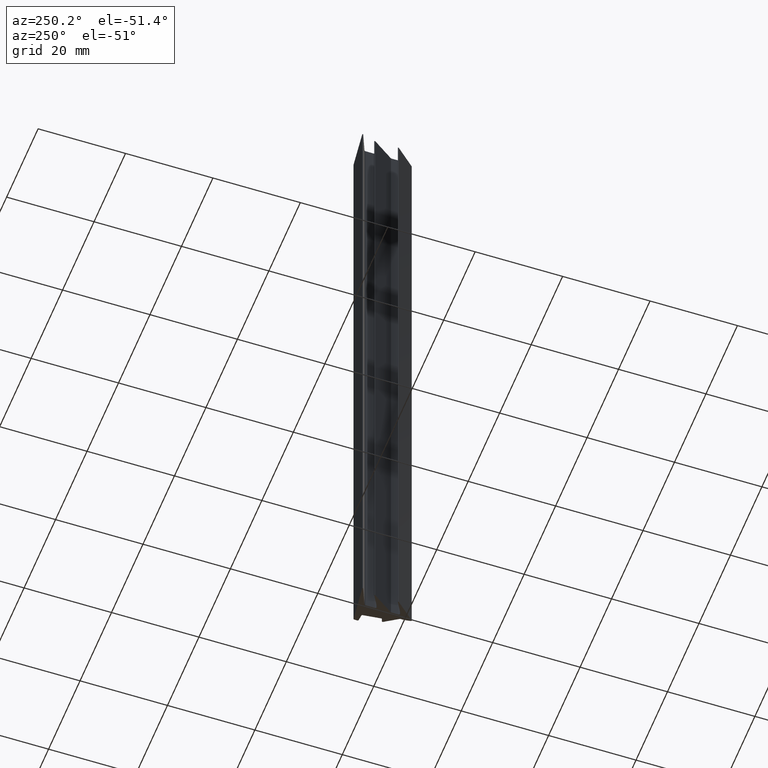
[diagram: clean part render]
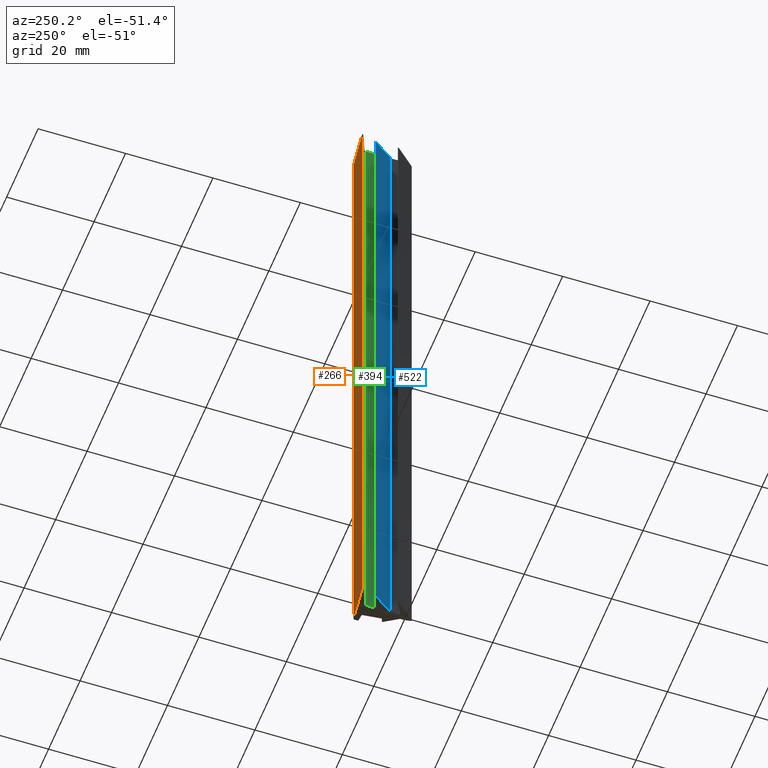
[diagram: same view with three faces highlighted in distinct colors, each labeled with its STEP entity id]
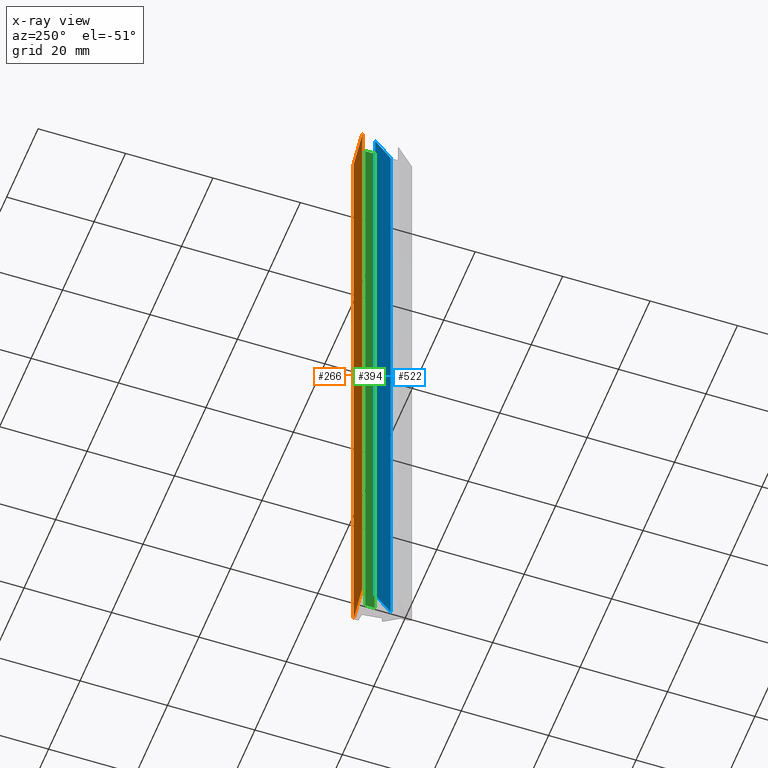
[diagram: x-ray of the same camera — body ghosted, the three highlighted faces saturated]
A machine part, auxiliary view with three faces highlighted in distinct colors.
The next image is the same camera in x-ray (body ghosted, the three faces saturated) — at least one of them is partly hidden behind the body in this view.
Their STEP definitions:

[orange] entity #266 — the highlighted planar face has unit normal (0.1253, 0.9921, 0).
#208=CARTESIAN_POINT('',(5.703349927026920,9.761455965798632,0.0));
#209=VERTEX_POINT('',#208);
#217=CARTESIAN_POINT('',(5.703349927026920,9.761455965798632,156.662099546738520));
#218=VERTEX_POINT('',#217);
#219=CARTESIAN_POINT('',(5.703349927026920,9.761455965798632,0.0));
#220=DIRECTION('',(0.0,0.0,1.0));
#221=VECTOR('',#220,156.662099546738520);
#222=LINE('',#219,#221);
#223=EDGE_CURVE('',#209,#218,#222,.T.);
#236=CARTESIAN_POINT('',(6.125630443962109,9.708140382124839,-7.833104977336927));
#237=DIRECTION('',(0.125261887887571,0.992123711763226,0.0));
#238=DIRECTION('',(-0.992123711763226,0.125261887887571,0.0));
#239=AXIS2_PLACEMENT_3D('',#236,#237,#238);
#240=PLANE('',#239);
#241=CARTESIAN_POINT('',(-2.742260411687312,10.827767639279045,0.0));
#242=VERTEX_POINT('',#241);
#243=CARTESIAN_POINT('',(5.703349927026920,9.761455965798632,0.0));
#244=DIRECTION('',(-0.992123711763217,0.125261887887643,0.0));
#245=VECTOR('',#244,8.512658490647869);
#246=LINE('',#243,#245);
#247=EDGE_CURVE('',#209,#242,#246,.T.);
#248=ORIENTED_EDGE('',*,*,#247,.T.);
#249=CARTESIAN_POINT('',(-2.742260411687312,10.827767639279045,156.662099546738520));
#250=VERTEX_POINT('',#249);
#251=CARTESIAN_POINT('',(-2.742260411687312,10.827767639279045,0.0));
#252=DIRECTION('',(0.0,0.0,1.0));
#253=VECTOR('',#252,156.662099546738520);
#254=LINE('',#251,#253);
#255=EDGE_CURVE('',#242,#250,#254,.T.);
#256=ORIENTED_EDGE('',*,*,#255,.T.);
#257=CARTESIAN_POINT('',(5.703349927026920,9.761455965798632,156.662099546738520));
#258=DIRECTION('',(-0.992123711763217,0.125261887887643,0.0));
#259=VECTOR('',#258,8.512658490647869);
#260=LINE('',#257,#259);
#261=EDGE_CURVE('',#218,#250,#260,.T.);
#262=ORIENTED_EDGE('',*,*,#261,.F.);
#263=ORIENTED_EDGE('',*,*,#223,.F.);
#264=EDGE_LOOP('',(#248,#256,#262,#263));
#265=FACE_OUTER_BOUND('',#264,.T.);
#266=ADVANCED_FACE('',(#265),#240,.T.);

[blue] entity #522 — the highlighted planar face has unit normal (-0.8221, -0.5693, 0).
#464=CARTESIAN_POINT('',(-1.932615860579972,7.551765873482509,0.0));
#465=VERTEX_POINT('',#464);
#473=CARTESIAN_POINT('',(-1.932615860579972,7.551765873482509,156.662099546738520));
#474=VERTEX_POINT('',#473);
#475=CARTESIAN_POINT('',(-1.932615860579972,7.551765873482509,0.0));
#476=DIRECTION('',(0.0,0.0,1.0));
#477=VECTOR('',#476,156.662099546738520);
#478=LINE('',#475,#477);
#479=EDGE_CURVE('',#465,#474,#478,.T.);
#492=CARTESIAN_POINT('',(-2.094520351987740,7.785560691892897,-7.833104977336927));
#493=DIRECTION('',(-0.822115594193941,-0.569320603687538,0.0));
#494=DIRECTION('',(0.569320603687538,-0.822115594193941,0.0));
#495=AXIS2_PLACEMENT_3D('',#492,#493,#494);
#496=PLANE('',#495);
#497=CARTESIAN_POINT('',(1.305473967573562,2.875869505279297,0.0));
#498=VERTEX_POINT('',#497);
#499=CARTESIAN_POINT('',(-1.932615860579972,7.551765873482509,0.0));
#500=DIRECTION('',(0.569320603687481,-0.822115594193981,0.0));
#501=VECTOR('',#500,5.687638576893263);
#502=LINE('',#499,#501);
#503=EDGE_CURVE('',#465,#498,#502,.T.);
#504=ORIENTED_EDGE('',*,*,#503,.T.);
#505=CARTESIAN_POINT('',(1.305473967573562,2.875869505279297,156.662099546738520));
#506=VERTEX_POINT('',#505);
#507=CARTESIAN_POINT('',(1.305473967573562,2.875869505279297,0.0));
#508=DIRECTION('',(0.0,0.0,1.0));
#509=VECTOR('',#508,156.662099546738520);
#510=LINE('',#507,#509);
#511=EDGE_CURVE('',#498,#506,#510,.T.);
#512=ORIENTED_EDGE('',*,*,#511,.T.);
#513=CARTESIAN_POINT('',(-1.932615860579972,7.551765873482509,156.662099546738520));
#514=DIRECTION('',(0.569320603687481,-0.822115594193981,0.0));
#515=VECTOR('',#514,5.687638576893263);
#516=LINE('',#513,#515);
#517=EDGE_CURVE('',#474,#506,#516,.T.);
#518=ORIENTED_EDGE('',*,*,#517,.F.);
#519=ORIENTED_EDGE('',*,*,#479,.F.);
#520=EDGE_LOOP('',(#504,#512,#518,#519));
#521=FACE_OUTER_BOUND('',#520,.T.);
#522=ADVANCED_FACE('',(#521),#496,.T.);

[green] entity #394 — the highlighted planar face has unit normal (-1, 0, 0).
#336=CARTESIAN_POINT('',(1.378657768036192,8.590800791863330,0.0));
#337=VERTEX_POINT('',#336);
#345=CARTESIAN_POINT('',(1.378657768036192,8.590800791863330,156.662099546738520));
#346=VERTEX_POINT('',#345);
#347=CARTESIAN_POINT('',(1.378657768036192,8.590800791863330,0.0));
#348=DIRECTION('',(0.0,0.0,1.0));
#349=VECTOR('',#348,156.662099546738520);
#350=LINE('',#347,#349);
#351=EDGE_CURVE('',#337,#346,#350,.T.);
#364=CARTESIAN_POINT('',(1.378657768036192,8.696981201759627,-7.833104977336927));
#365=DIRECTION('',(-1.0,0.0,0.0));
#366=DIRECTION('',(0.0,-1.0,0.0));
#367=AXIS2_PLACEMENT_3D('',#364,#365,#366);
#368=PLANE('',#367);
#369=CARTESIAN_POINT('',(1.378657768036192,6.467192593946493,0.0));
#370=VERTEX_POINT('',#369);
#371=CARTESIAN_POINT('',(1.378657768036192,8.590800791863330,0.0));
#372=DIRECTION('',(0.0,-1.0,0.0));
#373=VECTOR('',#372,2.123608197916838);
#374=LINE('',#371,#373);
#375=EDGE_CURVE('',#337,#370,#374,.T.);
#376=ORIENTED_EDGE('',*,*,#375,.T.);
#377=CARTESIAN_POINT('',(1.378657768036192,6.467192593946493,156.662099546738520));
#378=VERTEX_POINT('',#377);
#379=CARTESIAN_POINT('',(1.378657768036192,6.467192593946493,0.0));
#380=DIRECTION('',(0.0,0.0,1.0));
#381=VECTOR('',#380,156.662099546738520);
#382=LINE('',#379,#381);
#383=EDGE_CURVE('',#370,#378,#382,.T.);
#384=ORIENTED_EDGE('',*,*,#383,.T.);
#385=CARTESIAN_POINT('',(1.378657768036192,8.590800791863330,156.662099546738520));
#386=DIRECTION('',(0.0,-1.0,0.0));
#387=VECTOR('',#386,2.123608197916838);
#388=LINE('',#385,#387);
#389=EDGE_CURVE('',#346,#378,#388,.T.);
#390=ORIENTED_EDGE('',*,*,#389,.F.);
#391=ORIENTED_EDGE('',*,*,#351,.F.);
#392=EDGE_LOOP('',(#376,#384,#390,#391));
#393=FACE_OUTER_BOUND('',#392,.T.);
#394=ADVANCED_FACE('',(#393),#368,.T.);